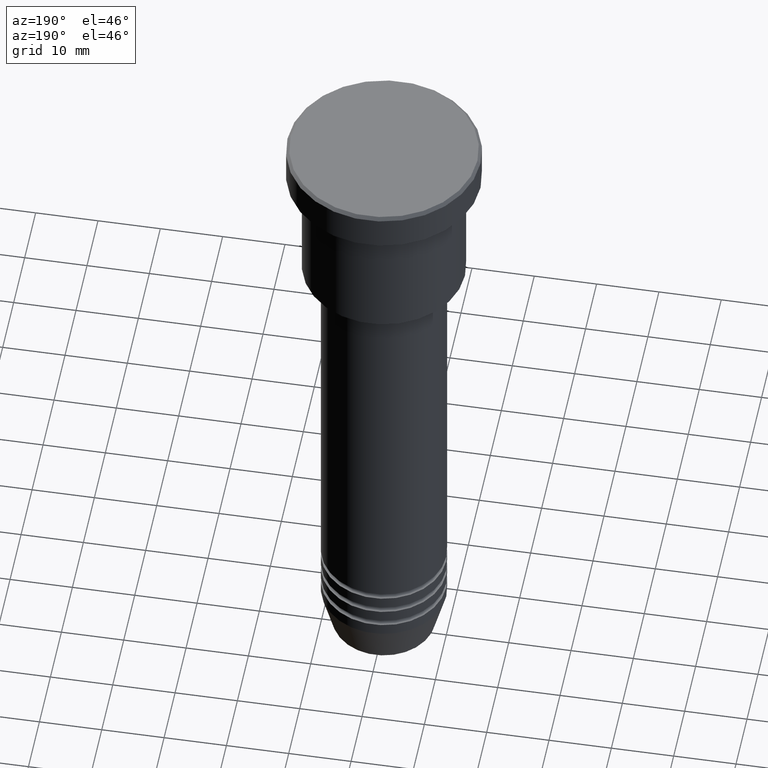
[diagram: clean part render]
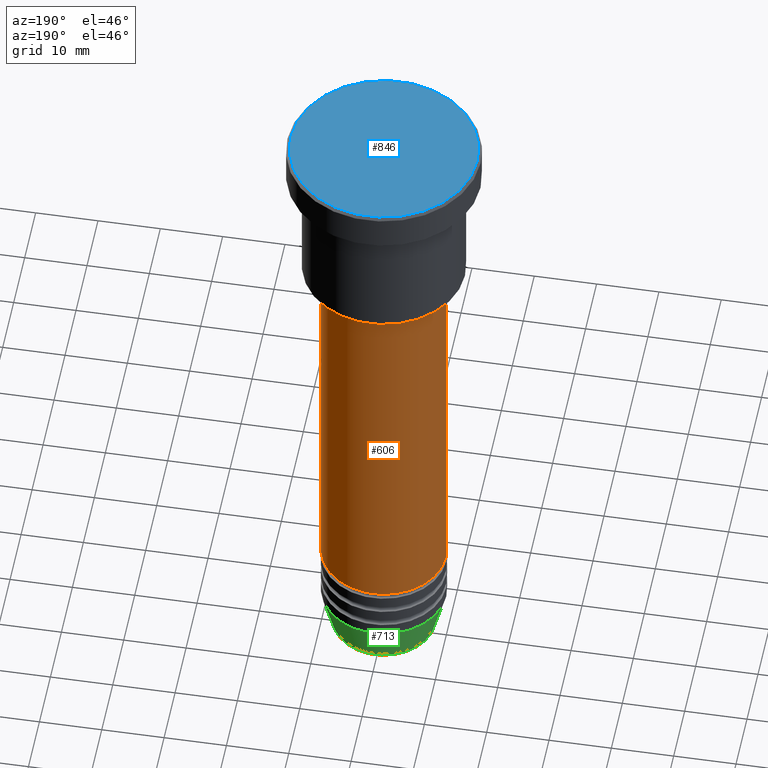
[diagram: same view with three faces highlighted in distinct colors, each labeled with its STEP entity id]
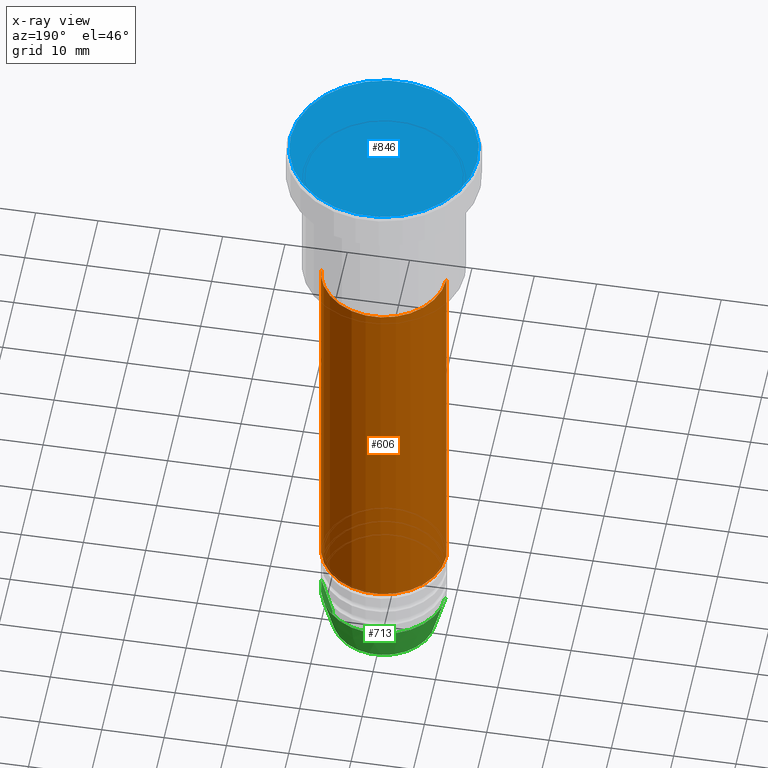
[diagram: x-ray of the same camera — body ghosted, the three highlighted faces saturated]
A machine part, auxiliary view with three faces highlighted in distinct colors.
The next image is the same camera in x-ray (body ghosted, the three faces saturated) — at least one of them is partly hidden behind the body in this view.
Their STEP definitions:

[orange] entity #606 — the highlighted cylindrical surface (partial cylindrical patch) has radius 10 mm, axis along (-0, -0, 1).
#64 = CARTESIAN_POINT ( 'NONE',  ( 0.000000000000000000, 0.000000000000000000, -28.00000000000000355 ) ) ;
#87 = VECTOR ( 'NONE', #958, 1000.000000000000000 ) ;
#104 = ORIENTED_EDGE ( 'NONE', *, *, #161, .F. ) ;
#161 = EDGE_CURVE ( 'NONE', #186, #1012, #220, .T. ) ;
#186 = VERTEX_POINT ( 'NONE', #429 ) ;
#197 = LINE ( 'NONE', #1001, #354 ) ;
#198 = EDGE_LOOP ( 'NONE', ( #930, #716, #385, #104 ) ) ;
#220 = LINE ( 'NONE', #1131, #87 ) ;
#223 = EDGE_CURVE ( 'NONE', #186, #372, #285, .T. ) ;
#227 = EDGE_CURVE ( 'NONE', #1012, #604, #616, .T. ) ;
#285 = CIRCLE ( 'NONE', #603, 10.00000000000000000 ) ;
#321 = CARTESIAN_POINT ( 'NONE',  ( 10.00000000000000000, 0.000000000000000000, -28.00000000000000355 ) ) ;
#351 = CARTESIAN_POINT ( 'NONE',  ( 0.000000000000000000, 0.000000000000000000, -90.99999999999997158 ) ) ;
#354 = VECTOR ( 'NONE', #552, 1000.000000000000000 ) ;
#372 = VERTEX_POINT ( 'NONE', #1174 ) ;
#385 = ORIENTED_EDGE ( 'NONE', *, *, #227, .F. ) ;
#395 = FACE_OUTER_BOUND ( 'NONE', #198, .T. ) ;
#429 = CARTESIAN_POINT ( 'NONE',  ( 10.00000000000000000, 0.000000000000000000, -90.99999999999997158 ) ) ;
#482 = EDGE_CURVE ( 'NONE', #372, #604, #197, .T. ) ;
#537 = DIRECTION ( 'NONE',  ( 1.000000000000000000, 0.000000000000000000, 0.000000000000000000 ) ) ;
#552 = DIRECTION ( 'NONE',  ( -0.000000000000000000, -0.000000000000000000, 1.000000000000000000 ) ) ;
#582 = DIRECTION ( 'NONE',  ( 1.000000000000000000, 0.000000000000000000, 0.000000000000000000 ) ) ;
#603 = AXIS2_PLACEMENT_3D ( 'NONE', #351, #1085, #537 ) ;
#604 = VERTEX_POINT ( 'NONE', #683 ) ;
#606 = ADVANCED_FACE ( 'NONE', ( #395 ), #950, .T. ) ;
#616 = CIRCLE ( 'NONE', #690, 10.00000000000000000 ) ;
#671 = DIRECTION ( 'NONE',  ( -0.000000000000000000, -0.000000000000000000, 1.000000000000000000 ) ) ;
#683 = CARTESIAN_POINT ( 'NONE',  ( -10.00000000000000000, 1.224646799147353256E-15, -28.00000000000000355 ) ) ;
#690 = AXIS2_PLACEMENT_3D ( 'NONE', #64, #1157, #838 ) ;
#716 = ORIENTED_EDGE ( 'NONE', *, *, #482, .T. ) ;
#838 = DIRECTION ( 'NONE',  ( 1.000000000000000000, 0.000000000000000000, 0.000000000000000000 ) ) ;
#868 = CARTESIAN_POINT ( 'NONE',  ( 0.000000000000000000, 0.000000000000000000, 0.000000000000000000 ) ) ;
#930 = ORIENTED_EDGE ( 'NONE', *, *, #223, .T. ) ;
#950 = CYLINDRICAL_SURFACE ( 'NONE', #1166, 10.00000000000000000 ) ;
#958 = DIRECTION ( 'NONE',  ( -0.000000000000000000, -0.000000000000000000, 1.000000000000000000 ) ) ;
#1001 = CARTESIAN_POINT ( 'NONE',  ( -10.00000000000000000, 1.224646799147353256E-15, 0.000000000000000000 ) ) ;
#1012 = VERTEX_POINT ( 'NONE', #321 ) ;
#1085 = DIRECTION ( 'NONE',  ( -0.000000000000000000, -0.000000000000000000, 1.000000000000000000 ) ) ;
#1131 = CARTESIAN_POINT ( 'NONE',  ( 10.00000000000000000, 0.000000000000000000, 0.000000000000000000 ) ) ;
#1157 = DIRECTION ( 'NONE',  ( -0.000000000000000000, -0.000000000000000000, 1.000000000000000000 ) ) ;
#1166 = AXIS2_PLACEMENT_3D ( 'NONE', #868, #671, #582 ) ;
#1174 = CARTESIAN_POINT ( 'NONE',  ( -10.00000000000000000, 1.224646799147353256E-15, -90.99999999999997158 ) ) ;

[blue] entity #846 — the highlighted planar face has unit normal (0, -0, 1).
#40 = CIRCLE ( 'NONE', #158, 15.00000000000002665 ) ;
#41 = DIRECTION ( 'NONE',  ( -0.000000000000000000, -0.000000000000000000, 1.000000000000000000 ) ) ;
#52 = CARTESIAN_POINT ( 'NONE',  ( 0.000000000000000000, 0.000000000000000000, 0.000000000000000000 ) ) ;
#124 = DIRECTION ( 'NONE',  ( -0.000000000000000000, -0.000000000000000000, 1.000000000000000000 ) ) ;
#158 = AXIS2_PLACEMENT_3D ( 'NONE', #224, #41, #1062 ) ;
#162 = ORIENTED_EDGE ( 'NONE', *, *, #687, .T. ) ;
#217 = ORIENTED_EDGE ( 'NONE', *, *, #574, .T. ) ;
#224 = CARTESIAN_POINT ( 'NONE',  ( 0.000000000000000000, 0.000000000000000000, 0.000000000000000000 ) ) ;
#324 = DIRECTION ( 'NONE',  ( 0.000000000000000000, -0.000000000000000000, 1.000000000000000000 ) ) ;
#334 = CARTESIAN_POINT ( 'NONE',  ( 15.00000000000002665, 1.867586368699715348E-15, 0.000000000000000000 ) ) ;
#553 = AXIS2_PLACEMENT_3D ( 'NONE', #52, #324, #770 ) ;
#554 = VERTEX_POINT ( 'NONE', #579 ) ;
#559 = CARTESIAN_POINT ( 'NONE',  ( 0.000000000000000000, 0.000000000000000000, 0.000000000000000000 ) ) ;
#574 = EDGE_CURVE ( 'NONE', #1091, #554, #923, .T. ) ;
#579 = CARTESIAN_POINT ( 'NONE',  ( -15.00000000000002665, 0.000000000000000000, 0.000000000000000000 ) ) ;
#597 = PLANE ( 'NONE',  #553 ) ;
#687 = EDGE_CURVE ( 'NONE', #554, #1091, #40, .T. ) ;
#770 = DIRECTION ( 'NONE',  ( 1.000000000000000000, 0.000000000000000000, 0.000000000000000000 ) ) ;
#839 = DIRECTION ( 'NONE',  ( 1.000000000000000000, 0.000000000000000000, 0.000000000000000000 ) ) ;
#846 = ADVANCED_FACE ( 'NONE', ( #866 ), #597, .T. ) ;
#866 = FACE_OUTER_BOUND ( 'NONE', #1167, .T. ) ;
#923 = CIRCLE ( 'NONE', #1123, 15.00000000000002665 ) ;
#1062 = DIRECTION ( 'NONE',  ( 1.000000000000000000, 0.000000000000000000, 0.000000000000000000 ) ) ;
#1091 = VERTEX_POINT ( 'NONE', #334 ) ;
#1123 = AXIS2_PLACEMENT_3D ( 'NONE', #559, #124, #839 ) ;
#1167 = EDGE_LOOP ( 'NONE', ( #162, #217 ) ) ;

[green] entity #713 — the highlighted conical surface has half-angle 15 deg.
#3 = VERTEX_POINT ( 'NONE', #28 ) ;
#12 = DIRECTION ( 'NONE',  ( 0.2588190451025213501, 0.000000000000000000, 0.9659258262890680902 ) ) ;
#21 = CARTESIAN_POINT ( 'NONE',  ( 0.000000000000000000, 0.000000000000000000, -100.0000000000000000 ) ) ;
#28 = CARTESIAN_POINT ( 'NONE',  ( -10.00000000000000000, 1.224646799147353256E-15, -100.0000000000000000 ) ) ;
#31 = VERTEX_POINT ( 'NONE', #635 ) ;
#43 = VERTEX_POINT ( 'NONE', #823 ) ;
#101 = LINE ( 'NONE', #458, #253 ) ;
#107 = DIRECTION ( 'NONE',  ( 1.000000000000000000, 0.000000000000000000, 0.000000000000000000 ) ) ;
#145 = CIRCLE ( 'NONE', #1074, 10.00000000000000000 ) ;
#208 = EDGE_LOOP ( 'NONE', ( #1088, #1100, #1093, #925 ) ) ;
#253 = VECTOR ( 'NONE', #12, 1000.000000000000000 ) ;
#295 = CARTESIAN_POINT ( 'NONE',  ( 0.000000000000000000, 0.000000000000000000, -106.6294095225512564 ) ) ;
#300 = AXIS2_PLACEMENT_3D ( 'NONE', #295, #648, #107 ) ;
#313 = EDGE_CURVE ( 'NONE', #916, #3, #332, .T. ) ;
#332 = LINE ( 'NONE', #969, #766 ) ;
#421 = CARTESIAN_POINT ( 'NONE',  ( 0.000000000000000000, 0.000000000000000000, -100.0000000000000000 ) ) ;
#457 = EDGE_CURVE ( 'NONE', #43, #31, #101, .T. ) ;
#458 = CARTESIAN_POINT ( 'NONE',  ( 10.00000000000000000, 0.000000000000000000, -100.0000000000000000 ) ) ;
#461 = EDGE_CURVE ( 'NONE', #43, #916, #800, .T. ) ;
#505 = CARTESIAN_POINT ( 'NONE',  ( -8.223655072137191269, 1.115877042642912054E-15, -106.6294095225512564 ) ) ;
#528 = DIRECTION ( 'NONE',  ( -0.000000000000000000, -0.000000000000000000, 1.000000000000000000 ) ) ;
#619 = DIRECTION ( 'NONE',  ( 1.000000000000000000, 0.000000000000000000, 0.000000000000000000 ) ) ;
#635 = CARTESIAN_POINT ( 'NONE',  ( 10.00000000000000000, 0.000000000000000000, -100.0000000000000000 ) ) ;
#648 = DIRECTION ( 'NONE',  ( -0.000000000000000000, -0.000000000000000000, 1.000000000000000000 ) ) ;
#661 = CONICAL_SURFACE ( 'NONE', #830, 10.00000000000000000, 0.2617993877991500740 ) ;
#694 = DIRECTION ( 'NONE',  ( 1.000000000000000000, 0.000000000000000000, 0.000000000000000000 ) ) ;
#713 = ADVANCED_FACE ( 'NONE', ( #884 ), #661, .T. ) ;
#766 = VECTOR ( 'NONE', #1147, 1000.000000000000000 ) ;
#800 = CIRCLE ( 'NONE', #300, 8.223655072137191269 ) ;
#823 = CARTESIAN_POINT ( 'NONE',  ( 8.223655072137191269, 0.000000000000000000, -106.6294095225512564 ) ) ;
#830 = AXIS2_PLACEMENT_3D ( 'NONE', #421, #1090, #694 ) ;
#884 = FACE_OUTER_BOUND ( 'NONE', #208, .T. ) ;
#916 = VERTEX_POINT ( 'NONE', #505 ) ;
#925 = ORIENTED_EDGE ( 'NONE', *, *, #457, .F. ) ;
#969 = CARTESIAN_POINT ( 'NONE',  ( -10.00000000000000000, 1.224646799147353256E-15, -100.0000000000000000 ) ) ;
#1074 = AXIS2_PLACEMENT_3D ( 'NONE', #21, #528, #619 ) ;
#1088 = ORIENTED_EDGE ( 'NONE', *, *, #461, .T. ) ;
#1090 = DIRECTION ( 'NONE',  ( -0.000000000000000000, -0.000000000000000000, 1.000000000000000000 ) ) ;
#1093 = ORIENTED_EDGE ( 'NONE', *, *, #1176, .F. ) ;
#1100 = ORIENTED_EDGE ( 'NONE', *, *, #313, .T. ) ;
#1147 = DIRECTION ( 'NONE',  ( -0.2588190451025213501, 3.169619151431772337E-17, 0.9659258262890680902 ) ) ;
#1176 = EDGE_CURVE ( 'NONE', #31, #3, #145, .T. ) ;